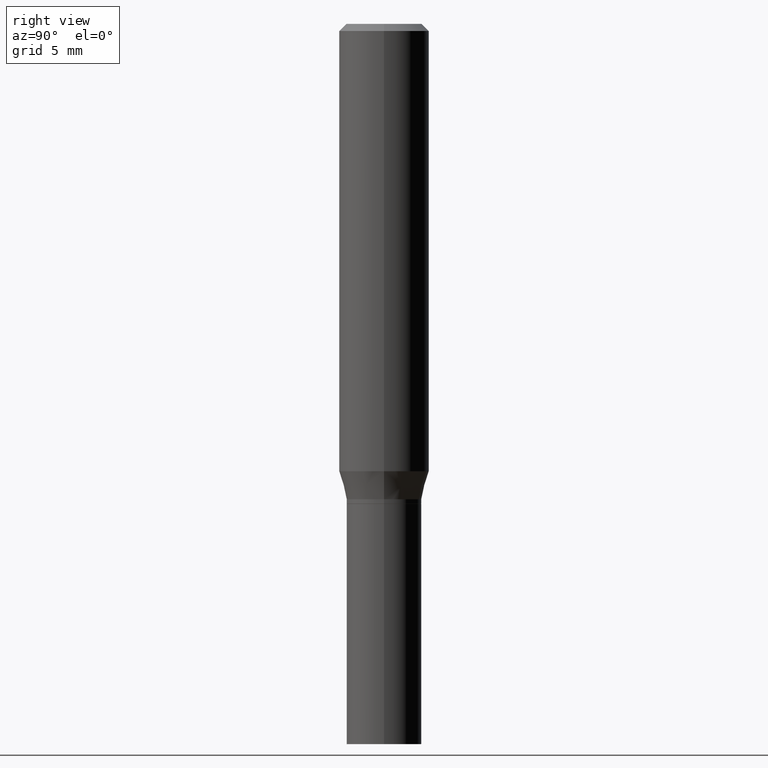
[diagram: clean part render]
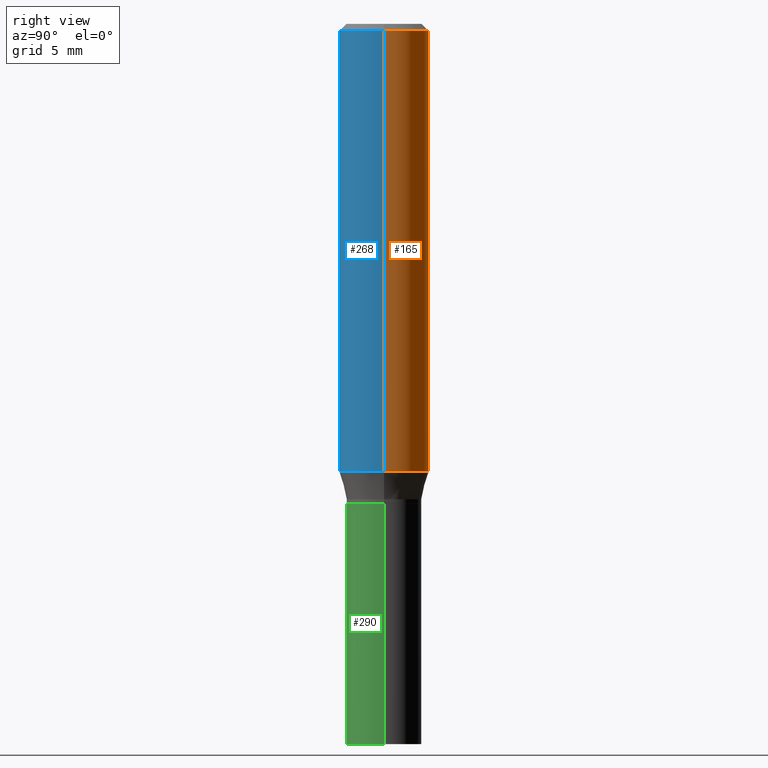
[diagram: same view with three faces highlighted in distinct colors, each labeled with its STEP entity id]
A machine part, right view with three faces highlighted in distinct colors.
Their STEP definitions:

[orange] entity #165 — the highlighted cylindrical surface (partial cylindrical patch) has radius 2.3813 mm, axis along (-0, 0, 1).
#30 = CIRCLE ( 'NONE', #305, 0.09375000000000001388 ) ;
#32 = DIRECTION ( 'NONE',  ( 1.000000000000000000, -6.982962677686265922E-15, 4.876176775795935793E-29 ) ) ;
#36 = VERTEX_POINT ( 'NONE', #438 ) ;
#37 = DIRECTION ( 'NONE',  ( 1.000000000000000000, -6.982962677686266711E-15, 0.000000000000000000 ) ) ;
#39 = EDGE_CURVE ( 'NONE', #354, #114, #30, .T. ) ;
#68 = EDGE_CURVE ( 'NONE', #36, #114, #445, .T. ) ;
#78 = CARTESIAN_POINT ( 'NONE',  ( 0.09375000000000001388, -7.070249711157346819E-16, -0.01499999999999999944 ) ) ;
#114 = VERTEX_POINT ( 'NONE', #118 ) ;
#118 = CARTESIAN_POINT ( 'NONE',  ( -0.09375000000000001388, -9.863727894979499703E-16, -0.01499999999999999944 ) ) ;
#120 = DIRECTION ( 'NONE',  ( -2.445468806185136597E-29, 3.491481338843145583E-15, 1.000000000000000000 ) ) ;
#126 = CARTESIAN_POINT ( 'NONE',  ( -0.09375000000000001388, 6.661338147750940229E-16, -4.611501647113973995E-30 ) ) ;
#134 = CYLINDRICAL_SURFACE ( 'NONE', #333, 0.09375000000000001388 ) ;
#136 = DIRECTION ( 'NONE',  ( -2.445468806185136877E-29, 3.491481338843145188E-15, 1.000000000000000000 ) ) ;
#139 = VECTOR ( 'NONE', #259, 39.37007874015748143 ) ;
#147 = VERTEX_POINT ( 'NONE', #355 ) ;
#165 = ADVANCED_FACE ( 'NONE', ( #274 ), #134, .T. ) ;
#203 = DIRECTION ( 'NONE',  ( 1.000000000000000000, -6.982962677686265922E-15, 0.000000000000000000 ) ) ;
#234 = CARTESIAN_POINT ( 'NONE',  ( 3.668203209277705088E-31, -5.237222008264718399E-17, -0.01499999999999999944 ) ) ;
#256 = EDGE_CURVE ( 'NONE', #147, #36, #383, .T. ) ;
#259 = DIRECTION ( 'NONE',  ( -2.445468806185136877E-29, 3.491481338843145188E-15, 1.000000000000000000 ) ) ;
#271 = VECTOR ( 'NONE', #136, 39.37007874015748143 ) ;
#274 = FACE_OUTER_BOUND ( 'NONE', #466, .T. ) ;
#282 = DIRECTION ( 'NONE',  ( -2.445468806185136597E-29, 3.491481338843145583E-15, 1.000000000000000000 ) ) ;
#296 = AXIS2_PLACEMENT_3D ( 'NONE', #430, #347, #37 ) ;
#305 = AXIS2_PLACEMENT_3D ( 'NONE', #234, #120, #203 ) ;
#325 = ORIENTED_EDGE ( 'NONE', *, *, #39, .F. ) ;
#329 = LINE ( 'NONE', #453, #271 ) ;
#333 = AXIS2_PLACEMENT_3D ( 'NONE', #425, #282, #32 ) ;
#334 = ORIENTED_EDGE ( 'NONE', *, *, #68, .T. ) ;
#347 = DIRECTION ( 'NONE',  ( -2.445468806185136597E-29, 3.491481338843145583E-15, 1.000000000000000000 ) ) ;
#354 = VERTEX_POINT ( 'NONE', #78 ) ;
#355 = CARTESIAN_POINT ( 'NONE',  ( 0.09375000000000001388, -3.907293739496527425E-15, -0.9315934048615475138 ) ) ;
#356 = ORIENTED_EDGE ( 'NONE', *, *, #418, .F. ) ;
#382 = ORIENTED_EDGE ( 'NONE', *, *, #256, .T. ) ;
#383 = CIRCLE ( 'NONE', #296, 0.09375000000000001388 ) ;
#418 = EDGE_CURVE ( 'NONE', #147, #354, #329, .T. ) ;
#425 = CARTESIAN_POINT ( 'NONE',  ( 0.000000000000000000, 0.000000000000000000, 0.000000000000000000 ) ) ;
#430 = CARTESIAN_POINT ( 'NONE',  ( 2.278182611636715174E-29, -3.252640988463440710E-15, -0.9315934048615475138 ) ) ;
#438 = CARTESIAN_POINT ( 'NONE',  ( -0.09375000000000001388, -2.586507173688346391E-15, -0.9315934048615475138 ) ) ;
#445 = LINE ( 'NONE', #126, #139 ) ;
#453 = CARTESIAN_POINT ( 'NONE',  ( 0.09375000000000001388, -6.546527510330875041E-16, 4.571415727308690506E-30 ) ) ;
#466 = EDGE_LOOP ( 'NONE', ( #382, #334, #325, #356 ) ) ;

[blue] entity #268 — the highlighted cylindrical surface (partial cylindrical patch) has radius 2.3813 mm, axis along (-0, 0, 1).
#11 = ORIENTED_EDGE ( 'NONE', *, *, #418, .T. ) ;
#18 = CYLINDRICAL_SURFACE ( 'NONE', #50, 0.09375000000000001388 ) ;
#27 = DIRECTION ( 'NONE',  ( 1.000000000000000000, -6.982962677686265922E-15, 4.876176775795935793E-29 ) ) ;
#34 = AXIS2_PLACEMENT_3D ( 'NONE', #53, #365, #265 ) ;
#36 = VERTEX_POINT ( 'NONE', #438 ) ;
#50 = AXIS2_PLACEMENT_3D ( 'NONE', #93, #266, #27 ) ;
#53 = CARTESIAN_POINT ( 'NONE',  ( 3.668203209277705088E-31, -5.237222008264718399E-17, -0.01499999999999999944 ) ) ;
#68 = EDGE_CURVE ( 'NONE', #36, #114, #445, .T. ) ;
#74 = ORIENTED_EDGE ( 'NONE', *, *, #262, .T. ) ;
#78 = CARTESIAN_POINT ( 'NONE',  ( 0.09375000000000001388, -7.070249711157346819E-16, -0.01499999999999999944 ) ) ;
#93 = CARTESIAN_POINT ( 'NONE',  ( 0.000000000000000000, 0.000000000000000000, 0.000000000000000000 ) ) ;
#110 = FACE_OUTER_BOUND ( 'NONE', #223, .T. ) ;
#114 = VERTEX_POINT ( 'NONE', #118 ) ;
#118 = CARTESIAN_POINT ( 'NONE',  ( -0.09375000000000001388, -9.863727894979499703E-16, -0.01499999999999999944 ) ) ;
#126 = CARTESIAN_POINT ( 'NONE',  ( -0.09375000000000001388, 6.661338147750940229E-16, -4.611501647113973995E-30 ) ) ;
#136 = DIRECTION ( 'NONE',  ( -2.445468806185136877E-29, 3.491481338843145188E-15, 1.000000000000000000 ) ) ;
#139 = VECTOR ( 'NONE', #259, 39.37007874015748143 ) ;
#147 = VERTEX_POINT ( 'NONE', #355 ) ;
#197 = AXIS2_PLACEMENT_3D ( 'NONE', #349, #465, #428 ) ;
#223 = EDGE_LOOP ( 'NONE', ( #247, #74, #11, #224 ) ) ;
#224 = ORIENTED_EDGE ( 'NONE', *, *, #404, .F. ) ;
#245 = CIRCLE ( 'NONE', #197, 0.09375000000000001388 ) ;
#247 = ORIENTED_EDGE ( 'NONE', *, *, #68, .F. ) ;
#259 = DIRECTION ( 'NONE',  ( -2.445468806185136877E-29, 3.491481338843145188E-15, 1.000000000000000000 ) ) ;
#262 = EDGE_CURVE ( 'NONE', #36, #147, #245, .T. ) ;
#265 = DIRECTION ( 'NONE',  ( 1.000000000000000000, -6.982962677686265922E-15, 0.000000000000000000 ) ) ;
#266 = DIRECTION ( 'NONE',  ( -2.445468806185136597E-29, 3.491481338843145583E-15, 1.000000000000000000 ) ) ;
#268 = ADVANCED_FACE ( 'NONE', ( #110 ), #18, .T. ) ;
#271 = VECTOR ( 'NONE', #136, 39.37007874015748143 ) ;
#279 = CIRCLE ( 'NONE', #34, 0.09375000000000001388 ) ;
#329 = LINE ( 'NONE', #453, #271 ) ;
#349 = CARTESIAN_POINT ( 'NONE',  ( 2.278182611636715174E-29, -3.252640988463440710E-15, -0.9315934048615475138 ) ) ;
#354 = VERTEX_POINT ( 'NONE', #78 ) ;
#355 = CARTESIAN_POINT ( 'NONE',  ( 0.09375000000000001388, -3.907293739496527425E-15, -0.9315934048615475138 ) ) ;
#365 = DIRECTION ( 'NONE',  ( -2.445468806185136597E-29, 3.491481338843145583E-15, 1.000000000000000000 ) ) ;
#404 = EDGE_CURVE ( 'NONE', #114, #354, #279, .T. ) ;
#418 = EDGE_CURVE ( 'NONE', #147, #354, #329, .T. ) ;
#428 = DIRECTION ( 'NONE',  ( 1.000000000000000000, -6.982962677686266711E-15, 0.000000000000000000 ) ) ;
#438 = CARTESIAN_POINT ( 'NONE',  ( -0.09375000000000001388, -2.586507173688346391E-15, -0.9315934048615475138 ) ) ;
#445 = LINE ( 'NONE', #126, #139 ) ;
#453 = CARTESIAN_POINT ( 'NONE',  ( 0.09375000000000001388, -6.546527510330875041E-16, 4.571415727308690506E-30 ) ) ;
#465 = DIRECTION ( 'NONE',  ( -2.445468806185136597E-29, 3.491481338843145583E-15, 1.000000000000000000 ) ) ;

[green] entity #290 — the highlighted cylindrical surface (partial cylindrical patch) has radius 1.9837 mm, axis along (-0, 0, 1).
#2 = LINE ( 'NONE', #140, #456 ) ;
#12 = VERTEX_POINT ( 'NONE', #116 ) ;
#35 = DIRECTION ( 'NONE',  ( -2.445468806185136877E-29, 3.491481338843145188E-15, 1.000000000000000000 ) ) ;
#40 = DIRECTION ( 'NONE',  ( 1.000000000000000000, -6.982962677686266711E-15, 4.876176775795935232E-29 ) ) ;
#44 = VERTEX_POINT ( 'NONE', #297 ) ;
#76 = ORIENTED_EDGE ( 'NONE', *, *, #219, .F. ) ;
#89 = ORIENTED_EDGE ( 'NONE', *, *, #173, .T. ) ;
#109 = ORIENTED_EDGE ( 'NONE', *, *, #239, .F. ) ;
#116 = CARTESIAN_POINT ( 'NONE',  ( -0.07810000000000000275, -3.809417796925293812E-15, -1.000000000000000222 ) ) ;
#123 = EDGE_CURVE ( 'NONE', #44, #152, #204, .T. ) ;
#140 = CARTESIAN_POINT ( 'NONE',  ( 0.07810000000000000275, -5.453693851272974364E-16, 3.808294061896625703E-30 ) ) ;
#143 = DIRECTION ( 'NONE',  ( -2.445468806185136597E-29, 3.491481338843145583E-15, 1.000000000000000000 ) ) ;
#148 = CARTESIAN_POINT ( 'NONE',  ( -0.07810000000000000275, 5.549338766286382647E-16, -3.841688305489081275E-30 ) ) ;
#152 = VERTEX_POINT ( 'NONE', #195 ) ;
#159 = EDGE_LOOP ( 'NONE', ( #109, #348, #89, #76 ) ) ;
#173 = EDGE_CURVE ( 'NONE', #152, #216, #2, .T. ) ;
#177 = CARTESIAN_POINT ( 'NONE',  ( 0.000000000000000000, 0.000000000000000000, 0.000000000000000000 ) ) ;
#186 = CIRCLE ( 'NONE', #270, 0.07810000000000000275 ) ;
#195 = CARTESIAN_POINT ( 'NONE',  ( 0.07810000000000000275, -5.782591393392015613E-15, -1.500000000000000222 ) ) ;
#204 = CIRCLE ( 'NONE', #432, 0.07810000000000000275 ) ;
#215 = LINE ( 'NONE', #148, #439 ) ;
#216 = VERTEX_POINT ( 'NONE', #292 ) ;
#219 = EDGE_CURVE ( 'NONE', #12, #216, #186, .T. ) ;
#239 = EDGE_CURVE ( 'NONE', #44, #12, #215, .T. ) ;
#242 = CYLINDRICAL_SURFACE ( 'NONE', #339, 0.07810000000000000275 ) ;
#260 = DIRECTION ( 'NONE',  ( 1.000000000000000000, -6.982962677686266711E-15, 0.000000000000000000 ) ) ;
#270 = AXIS2_PLACEMENT_3D ( 'NONE', #458, #143, #419 ) ;
#290 = ADVANCED_FACE ( 'NONE', ( #414 ), #242, .T. ) ;
#292 = CARTESIAN_POINT ( 'NONE',  ( 0.07810000000000000275, -4.036850723970443413E-15, -1.000000000000000222 ) ) ;
#297 = CARTESIAN_POINT ( 'NONE',  ( -0.07810000000000000275, -3.809417796925293812E-15, -1.500000000000000222 ) ) ;
#315 = DIRECTION ( 'NONE',  ( -2.445468806185136877E-29, 3.491481338843145188E-15, 1.000000000000000000 ) ) ;
#339 = AXIS2_PLACEMENT_3D ( 'NONE', #177, #457, #40 ) ;
#348 = ORIENTED_EDGE ( 'NONE', *, *, #123, .T. ) ;
#371 = DIRECTION ( 'NONE',  ( -2.445468806185136597E-29, 3.491481338843145583E-15, 1.000000000000000000 ) ) ;
#405 = CARTESIAN_POINT ( 'NONE',  ( 3.668203209277704895E-29, -5.237222008264718177E-15, -1.500000000000000222 ) ) ;
#414 = FACE_OUTER_BOUND ( 'NONE', #159, .T. ) ;
#419 = DIRECTION ( 'NONE',  ( 1.000000000000000000, -6.982962677686266711E-15, 0.000000000000000000 ) ) ;
#432 = AXIS2_PLACEMENT_3D ( 'NONE', #405, #371, #260 ) ;
#439 = VECTOR ( 'NONE', #35, 39.37007874015748143 ) ;
#456 = VECTOR ( 'NONE', #315, 39.37007874015748143 ) ;
#457 = DIRECTION ( 'NONE',  ( -2.445468806185136597E-29, 3.491481338843145583E-15, 1.000000000000000000 ) ) ;
#458 = CARTESIAN_POINT ( 'NONE',  ( 2.445468806185136877E-29, -3.491481338843145977E-15, -1.000000000000000222 ) ) ;